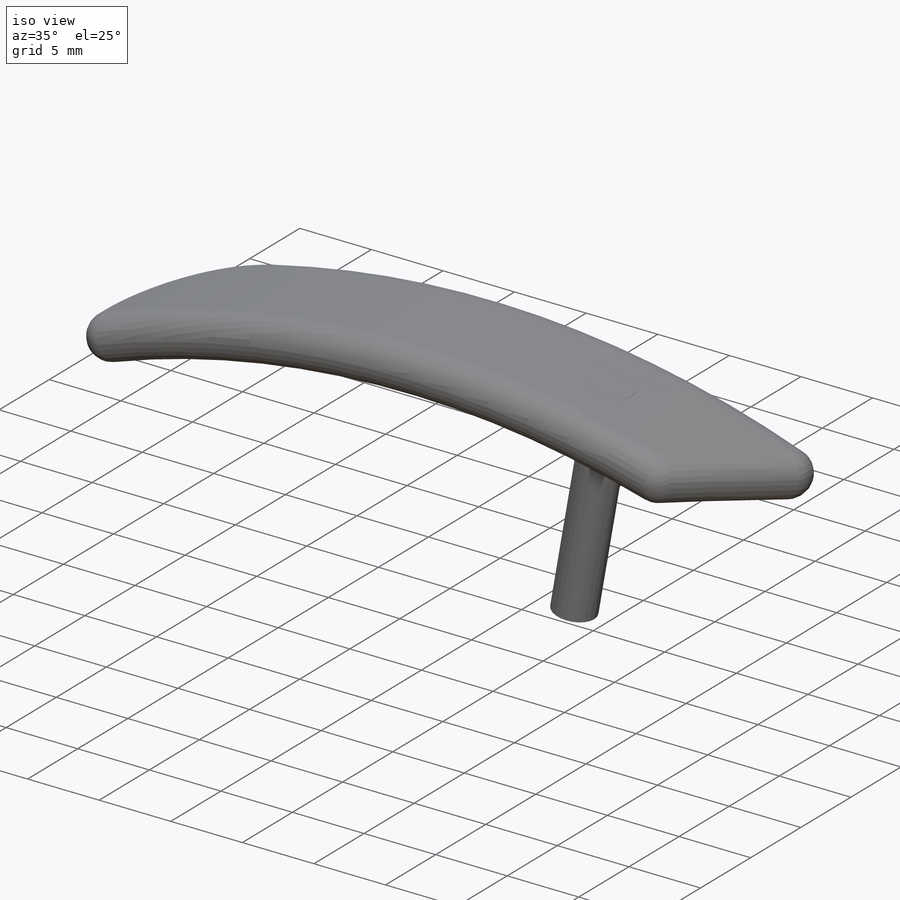
[diagram: iso view]
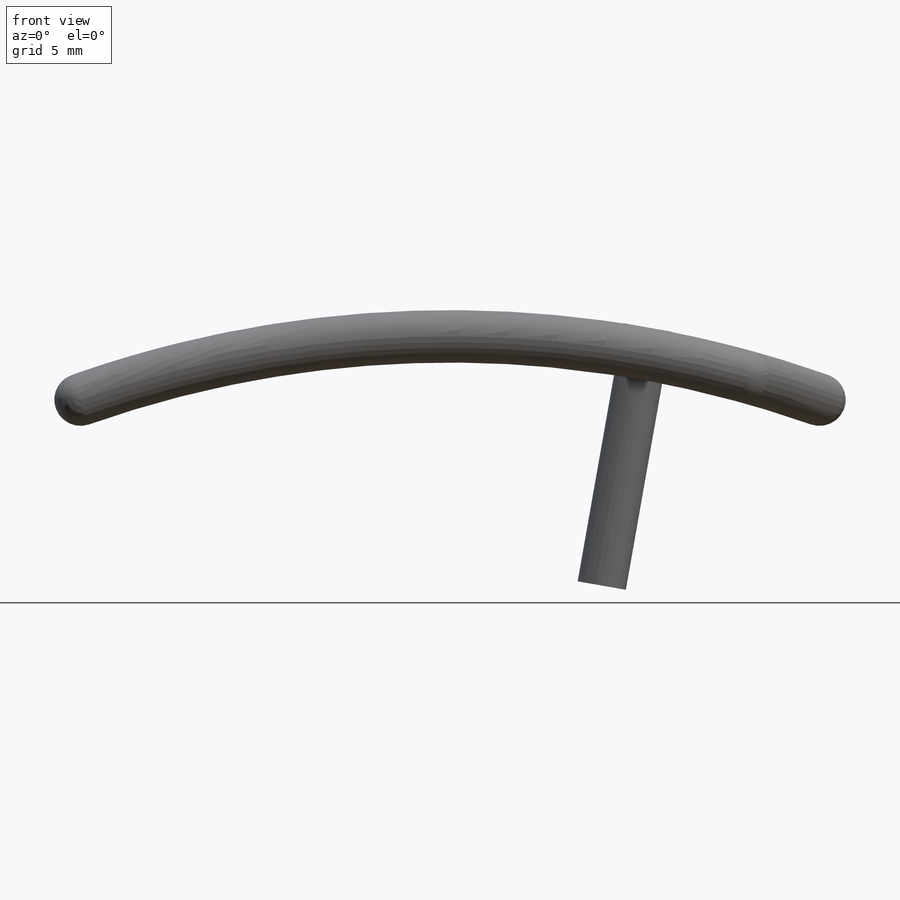
[diagram: front view]
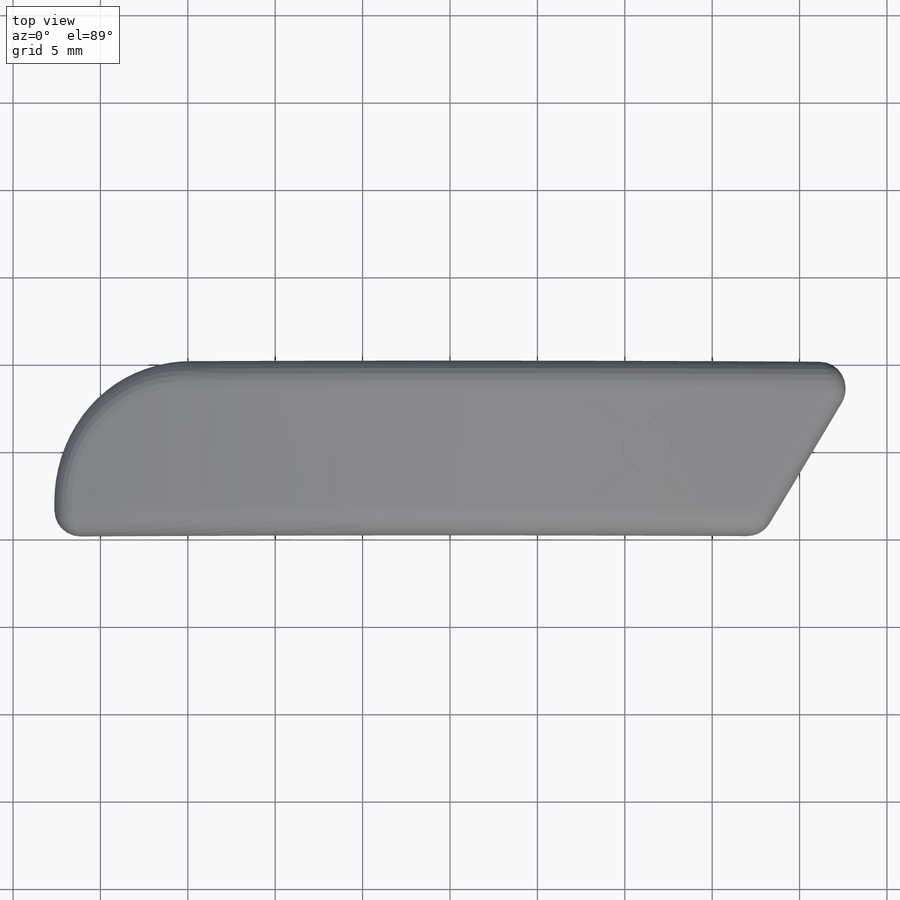
[diagram: top view]
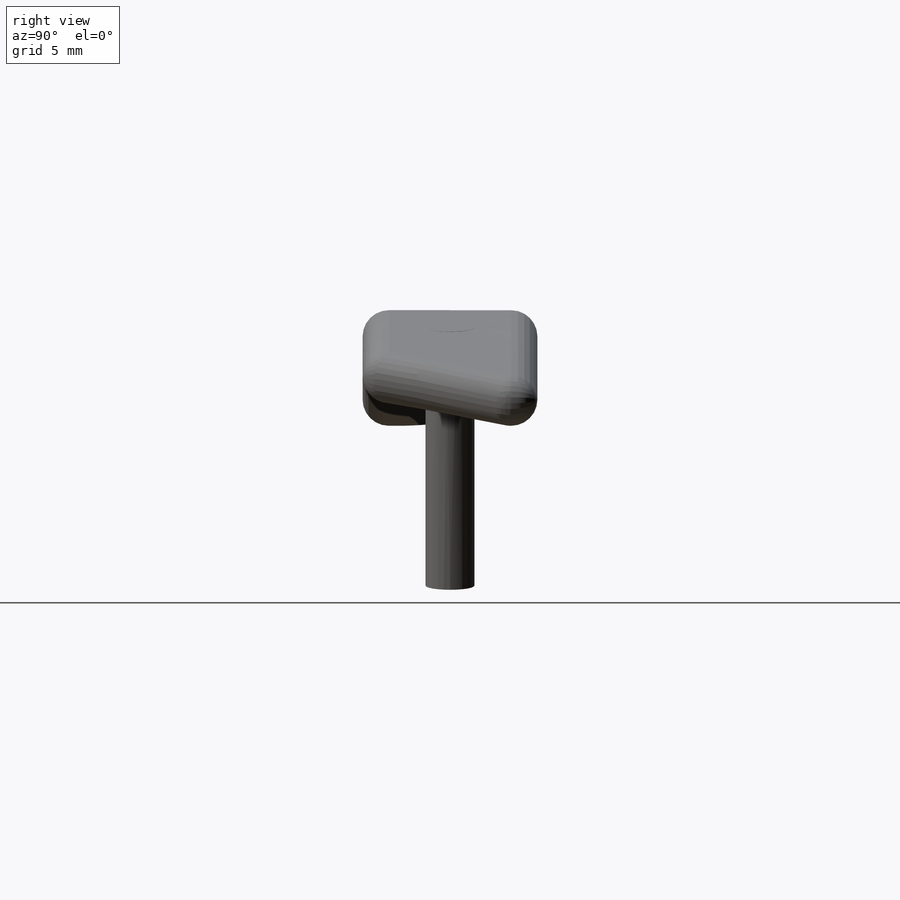
[diagram: right view]
SOLIDWORKS PART (.sldprt)
format: sldprt  version: not decoded by parser v0  size: 246,784 bytes
history: native  units: mm
features: fillet x4, sketch x2, extrude x2, plane x2, material x1, chamfer x1 (+12 scaffold rows collapsed)
feature tree (24):
  scaffold x12  (default folders/planes/origin — collapsed)
  material  "Material <not specified>"
  sketch  "Sketch1"  dims[c1.D1=~66.037039mm c2.D1=20.8deg c2.D2=65.0mm c3.D2=20.8deg]
  extrude  "Boss-Extrude1"  Depth=10mm
  fillet  "Fillet1"  Radius=8mm
  chamfer  "Chamfer1"  Distance=8mm Angle=32deg
  fillet  "Fillet3"  Radius=1.5mm
  fillet  "Fillet4"  Radius=1.5mm
  fillet  "Fillet5"  Radius=1.5mm
  plane  "Plane1"
  sketch  "Sketch2"  dims[D1=3.5mm]
  extrude  "Boss-Extrude2"  Depth=15mm
  plane  "Plane2"
decode coverage: 9 of 9 modeling features carry decoded parameters
note: ~ marks probable driven/reference dimensions
note: suppression state not decoded; provenance and decode notes live in map.json
